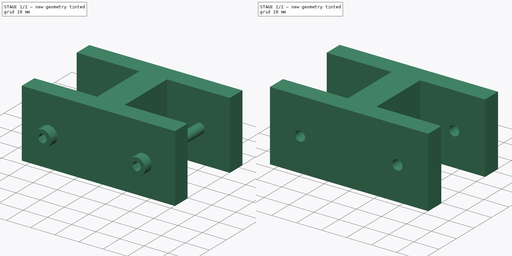
[diagram: build sequence overview — one tinted view per stage of 2, left to right]
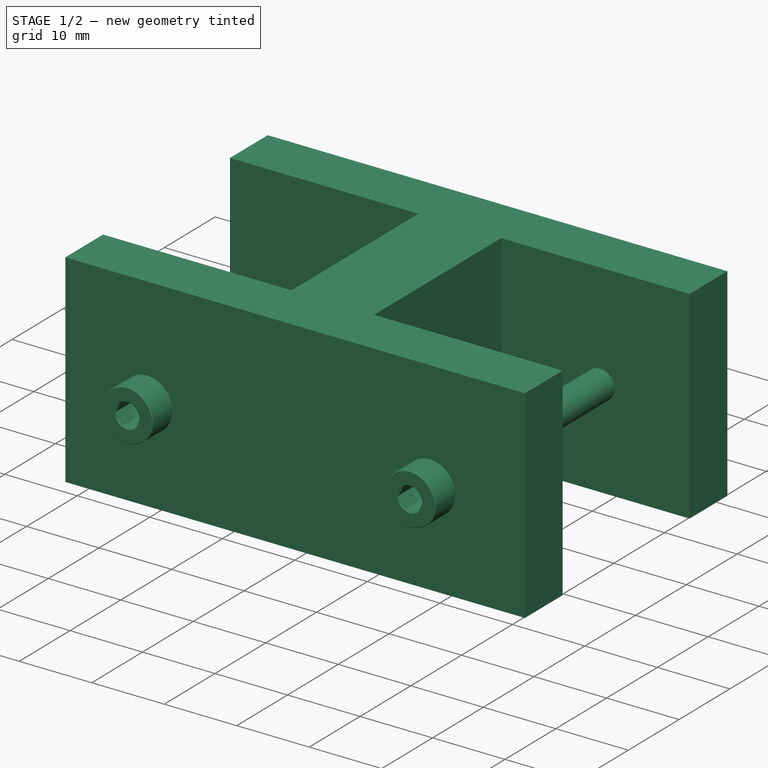
[diagram: stage 1 of 2 — iso view after this stage's code; geometry added in this stage tinted green]
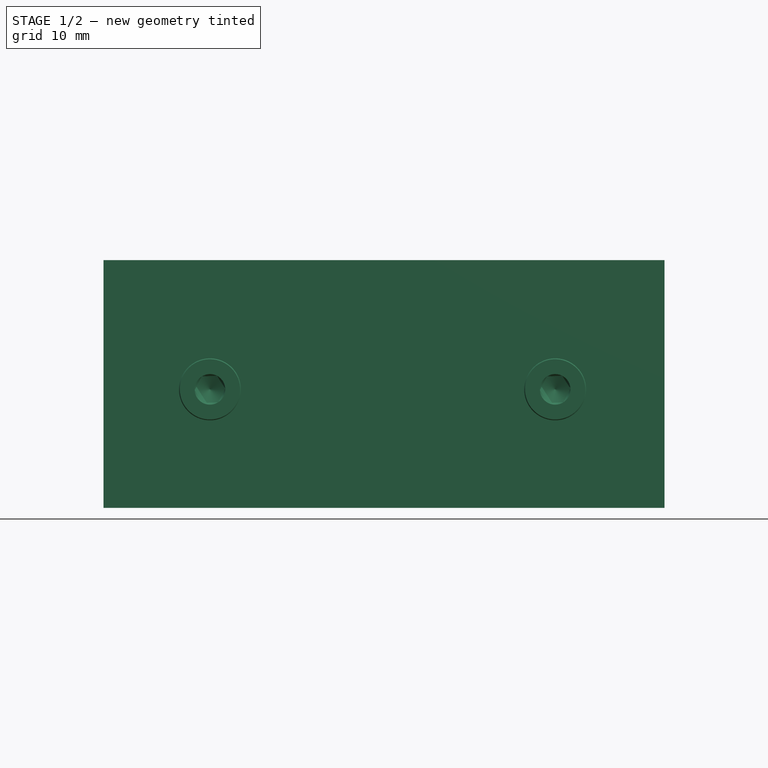
[diagram: stage 1 of 2 — front view after this stage's code; geometry added in this stage tinted green]
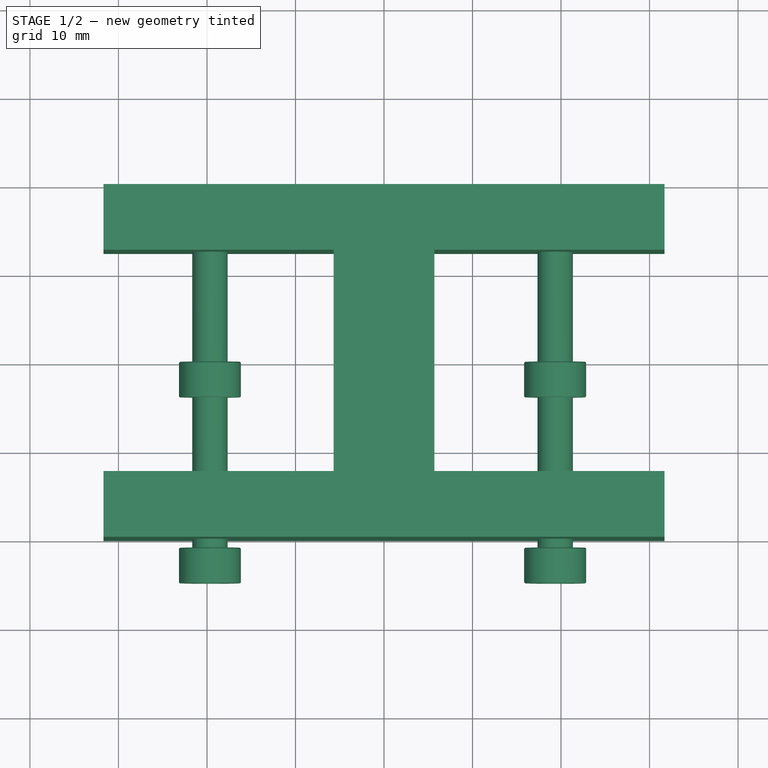
[diagram: stage 1 of 2 — top view after this stage's code; geometry added in this stage tinted green]
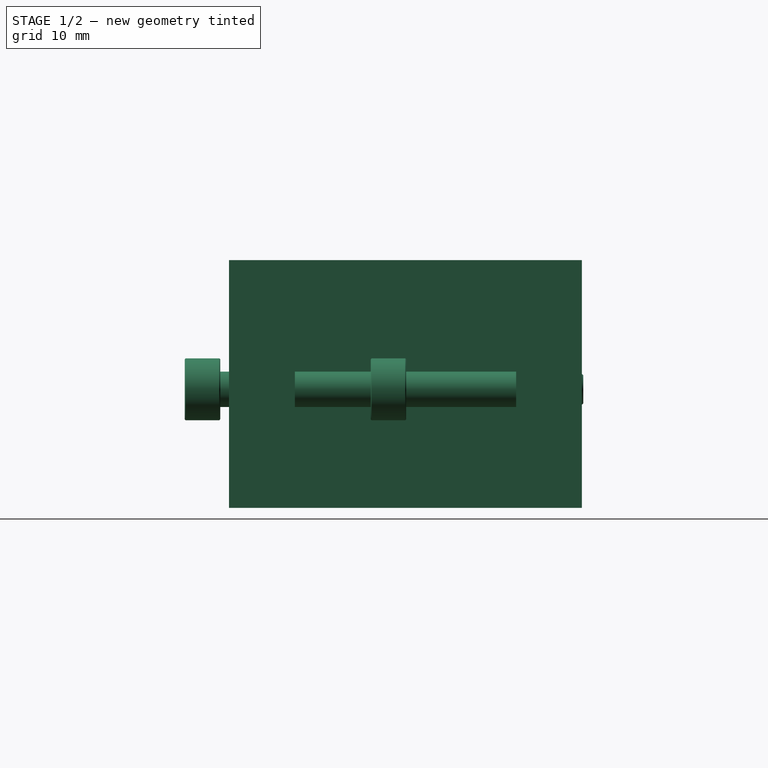
[diagram: stage 1 of 2 — right view after this stage's code; geometry added in this stage tinted green]
FCSTD DOCUMENT  (FreeCAD 0.14R3702 (Git))
Label: pieza_mesa2
License: CC-BY 3.0
LicenseURL: http://creativecommons.org/licenses/by/3.0/
objects: Part::Feature×4, Sketcher::SketchObject×1, PartDesign::Pad×1, Part::MultiFuse×1, Part::Cut×1
note: 9 computed .brp shape members not serialized (recipe doc carries the construction recipe); baked Part::Feature solids carry a one-line shape summary decoded from their .brp

FEATURE [Sketcher::SketchObject] Sketch
  sketch-geometry (12):
    g0: LineSegment StartX=-31.6939 StartY=19.9333 StartZ=0 EndX=-31.6939 EndY=12.5 EndZ=0
    g1: LineSegment StartX=-31.6939 StartY=12.5 StartZ=0 EndX=-5.69392 EndY=12.5 EndZ=0
    g2: LineSegment StartX=-5.69392 StartY=12.5 StartZ=0 EndX=-5.69392 EndY=-12.5 EndZ=0
    g3: LineSegment StartX=-5.69392 StartY=-12.5 StartZ=0 EndX=-31.6939 EndY=-12.5 EndZ=0
    g4: LineSegment StartX=-31.6939 StartY=-12.5 StartZ=0 EndX=-31.6939 EndY=-19.9333 EndZ=0
    g5: LineSegment StartX=-31.6939 StartY=-19.9333 StartZ=0 EndX=31.6939 EndY=-19.9333 EndZ=0
    g6: LineSegment StartX=31.6939 StartY=-19.9333 StartZ=0 EndX=31.6939 EndY=-12.5 EndZ=0
    g7: LineSegment StartX=31.6939 StartY=-12.5 StartZ=0 EndX=5.69392 EndY=-12.5 EndZ=0
    g8: LineSegment StartX=5.69392 StartY=-12.5 StartZ=0 EndX=5.69392 EndY=12.5 EndZ=0
    g9: LineSegment StartX=5.69392 StartY=12.5 StartZ=0 EndX=31.6939 EndY=12.5 EndZ=0
    g10: LineSegment StartX=31.6939 StartY=12.5 StartZ=0 EndX=31.6939 EndY=19.9333 EndZ=0
    g11: LineSegment StartX=31.6939 StartY=19.9333 StartZ=0 EndX=-31.6939 EndY=19.9333 EndZ=0
  constraints (33):
    c: Vertical(g0)
    c: Coincident(g0,g1)
    c: Horizontal(g1)
    c: Coincident(g1,g2)
    c: Vertical(g2)
    c: Coincident(g2,g3)
    c: Horizontal(g3)
    c: Coincident(g3,g4)
    c: Vertical(g4)
    c: Coincident(g4,g5)
    c: Horizontal(g5)
    c: Coincident(g5,g6)
    c: Vertical(g6)
    c: Coincident(g6,g7)
    c: Horizontal(g7)
    c: Coincident(g7,g8)
    c: Vertical(g8)
    c: Coincident(g8,g9)
    c: Horizontal(g9)
    c: Coincident(g9,g10)
    c: Vertical(g10)
    c: Coincident(g10,g11)
    c: Coincident(g11,g0)
    c: Horizontal(g11)
    c: Symmetric(g4,g5,g-2)
    c: Symmetric(g7,g2,g-2)
    c: Symmetric(g8,g1,g-2)
    c: Symmetric(g0,g10,g-2)
    c: Symmetric(g6,g9,g-1)
    c: Distance(g9) = 26
    c: Distance(g2) = 25
    c: Distance(g10) = 7.43334
    c: Symmetric(g10,g5,g-1)
FEATURE [PartDesign::Pad] Pad
  Length = 28
  Length2 = 100
  Sketch = -> Sketch
  Type = 0
FEATURE [Part::Feature] Part__Feature  label="Chamfer002"
  Placement = pos=(19.3368,-20.9333,13.3969) rot=(0.017435,0.706999,-0.706999;3.10672rad)
  shape: bbox 7 x 24 x 7 mm, 23 faces (baked)
FEATURE [Part::Feature] Part__Feature004  label="Chamfer006"
  Placement = pos=(-19.6632,-20.9333,13.3969) rot=(-0.017435,-0.706999,0.706999;3.17646rad)
  shape: bbox 7 x 24 x 7 mm, 23 faces (baked)
FEATURE [Part::Feature] Part__Feature005  label="Chamfer007"
  Placement = pos=(19.3368,0.0777,13.3969) rot=(-0.017435,-0.706999,0.706999;3.17646rad)
  shape: bbox 7 x 24 x 7 mm, 23 faces (baked)
FEATURE [Part::Feature] Part__Feature006  label="Chamfer008"
  Placement = pos=(-19.6632,0.0787,13.3969) rot=(-0.017435,-0.706999,0.706999;3.17646rad)
  shape: bbox 7 x 24 x 7 mm, 23 faces (baked)
FEATURE [Part::MultiFuse] Fusion
  Shapes = -> [Part__Feature,Part__Feature006,Part__Feature004,Part__Feature005]
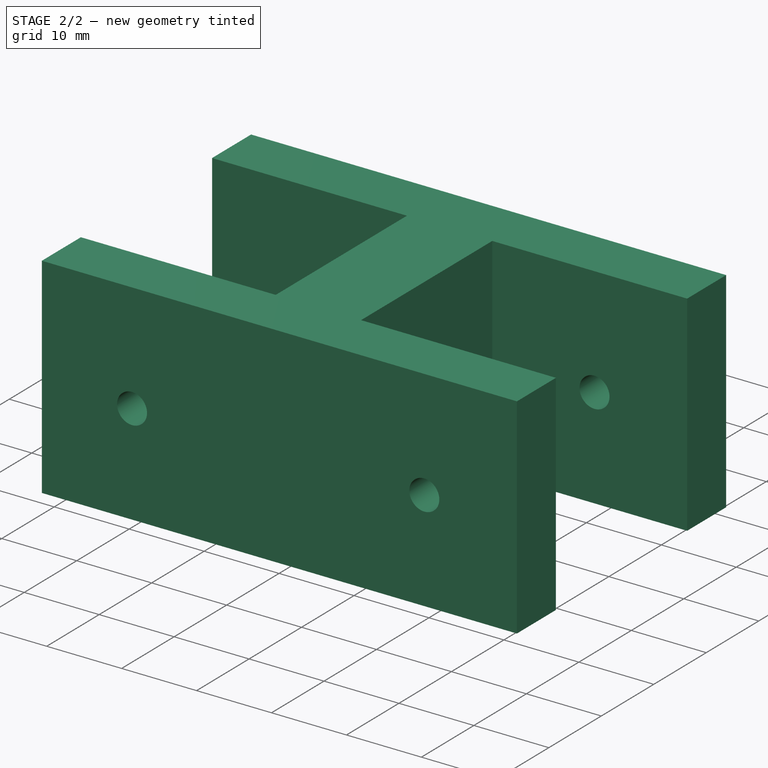
[diagram: stage 2 of 2 — iso view after this stage's code; geometry added in this stage tinted green]
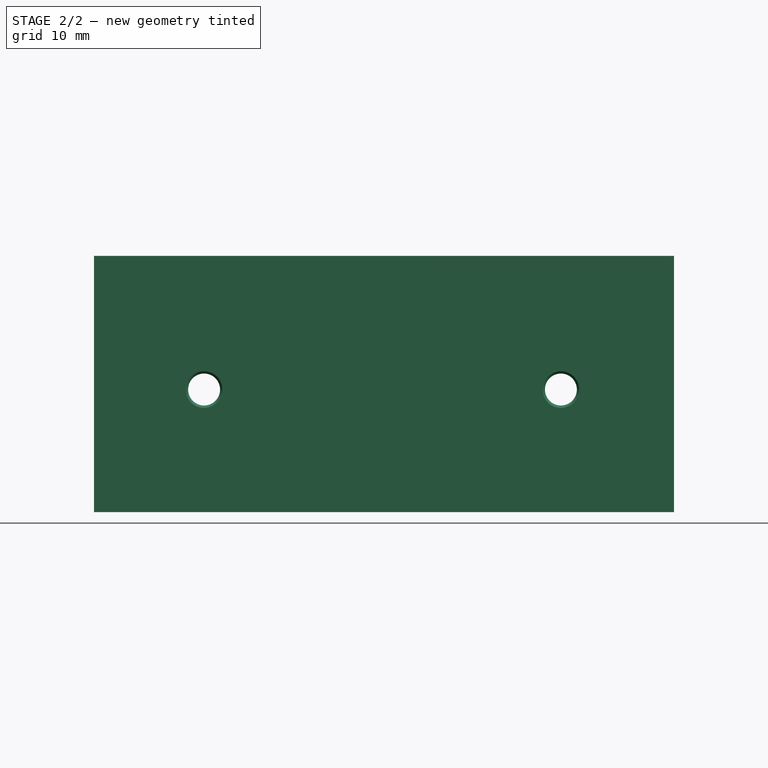
[diagram: stage 2 of 2 — front view after this stage's code; geometry added in this stage tinted green]
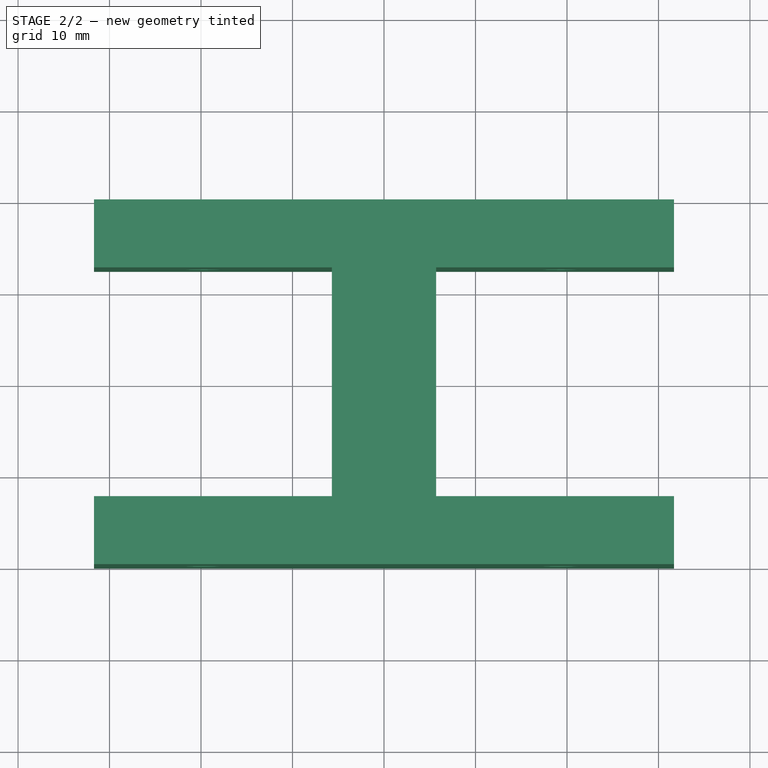
[diagram: stage 2 of 2 — top view after this stage's code; geometry added in this stage tinted green]
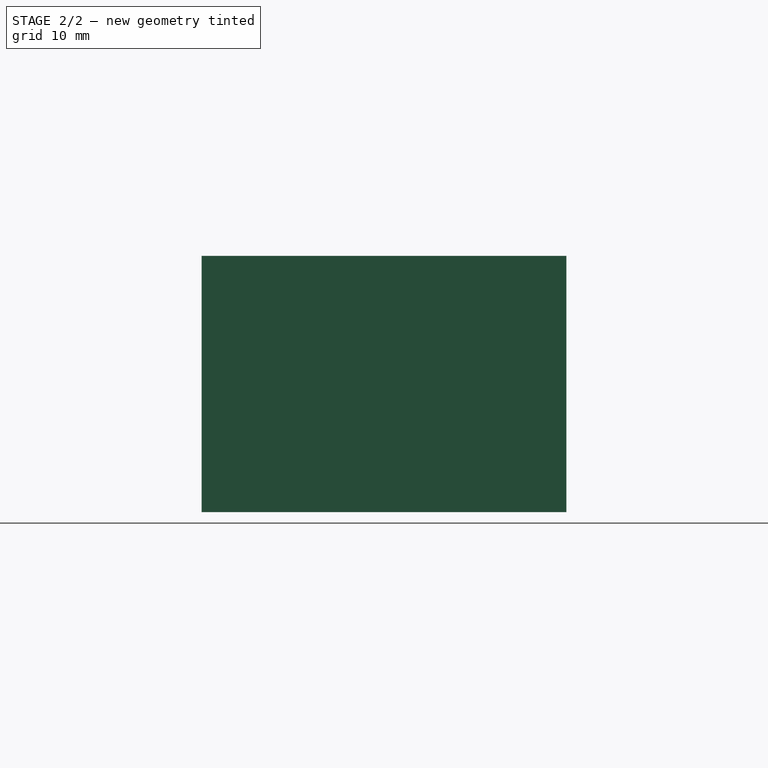
[diagram: stage 2 of 2 — right view after this stage's code; geometry added in this stage tinted green]
FEATURE [Part::Cut] Cut
  Base = -> Pad
  Tool = -> Fusion
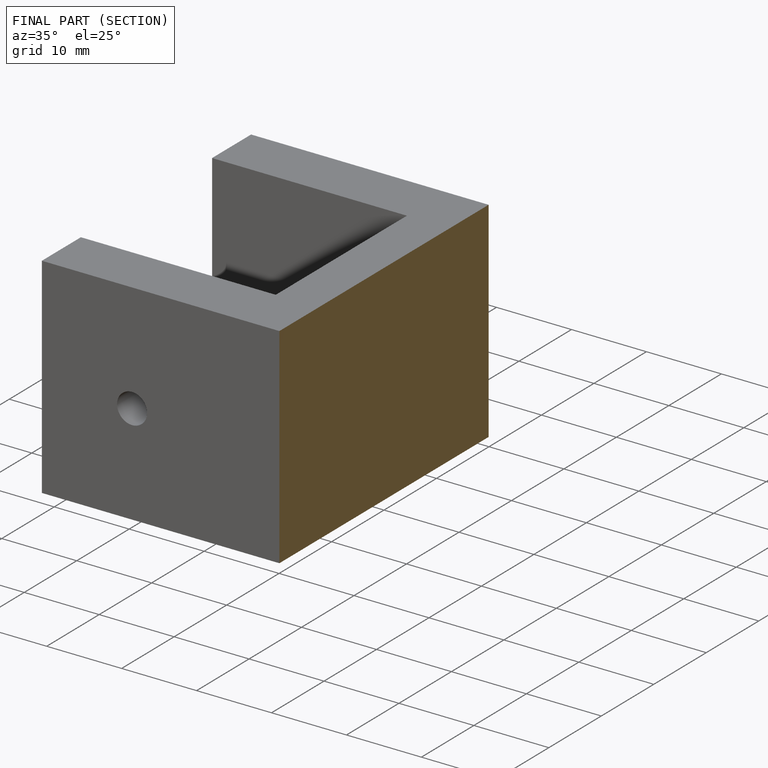
[diagram: finished part — half-section view (interior)]
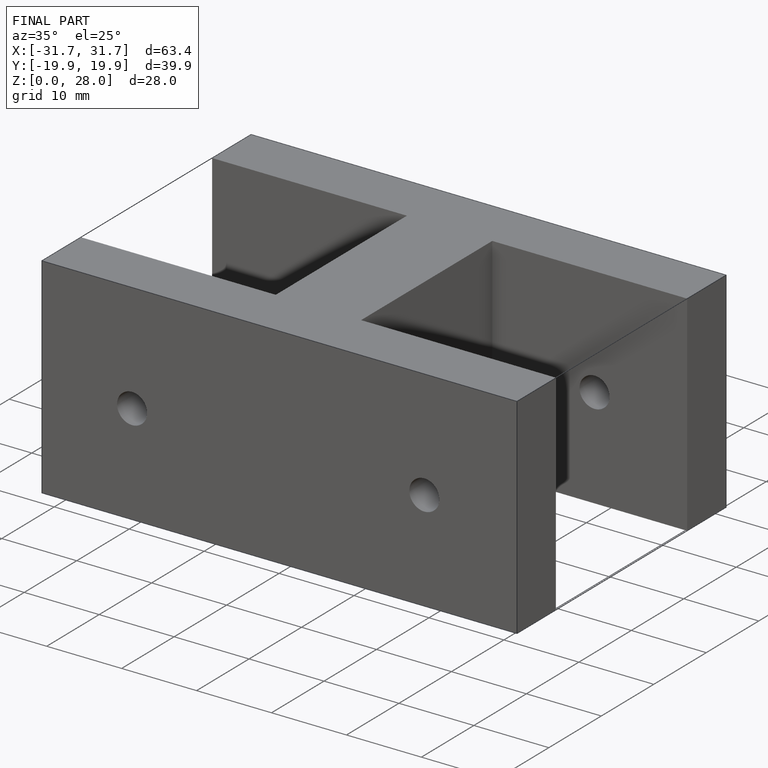
[diagram: finished part — iso view with bounding-box wireframe]
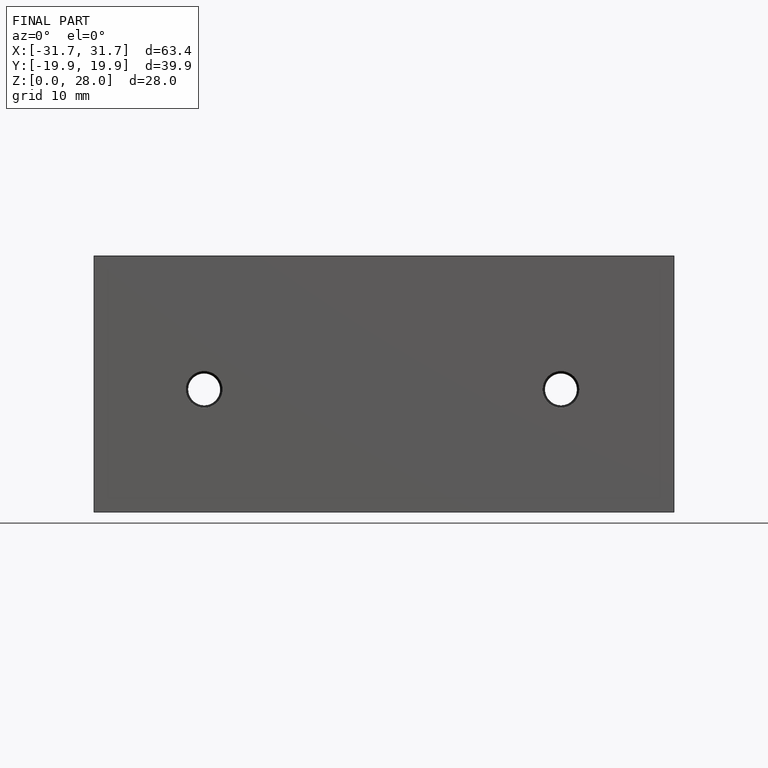
[diagram: finished part — front view with bounding-box wireframe]
